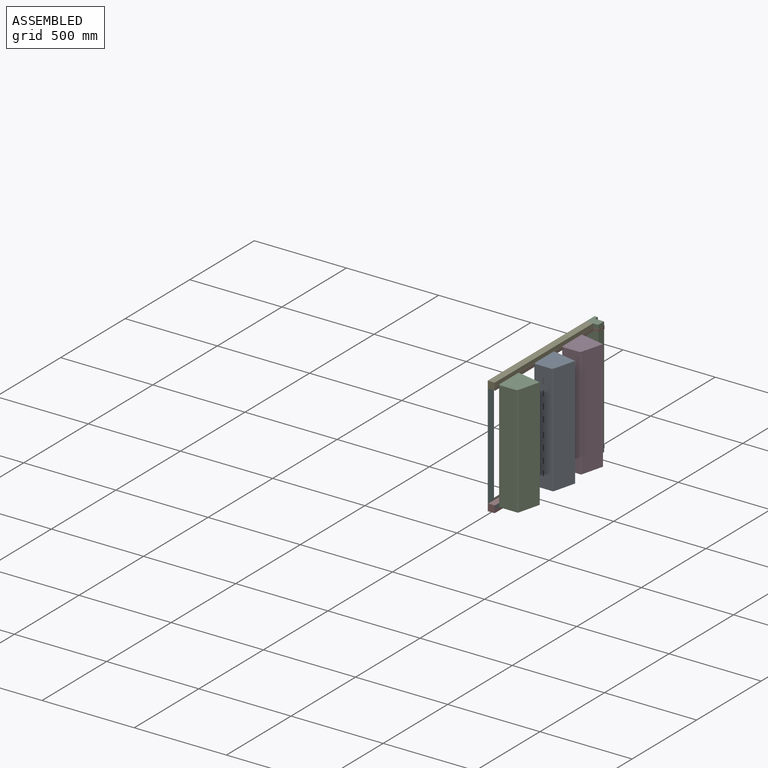
[diagram: assembled view]
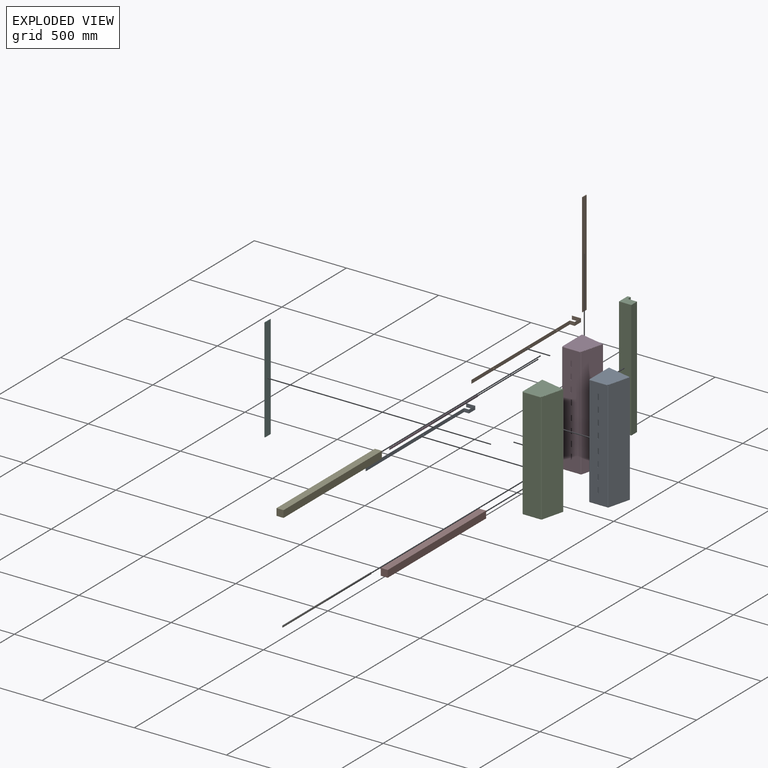
[diagram: exploded view]
GUIDED TOUR — MATED ASSEMBLY WITH SUBASSEMBLIES (Onshape document e24dba57bcac1407175b9171, AutoMate assembly e24dba57bcac1407175b9171_94eac4f6c8a923de0c3e7c80_e54bdbfbce681749a1011033_default)

This assembly has 24 component occurrences arranged in 12 top-level units: 10 individual components plus 2 subassemblies (S0, S1). The tour has two levels: first the top level, where each subassembly is treated as one rigid unit; then each subassembly is toured internally in its own section (nesting deeper than one subassembly level is flattened into its subassembly's section).

Components are labeled P0..P23 across the whole record; subassembly units are labeled S0..S1. A mate is a constraint between two units; its type names the relative motion it leaves free:
  FASTENED — locks the two components together rigidly (no relative motion),
  PLANAR — leaves sliding in the plane through the listed point (normal = the listed direction) and rotation about that normal free,
  SLIDER — leaves translation along the listed axis free.
Axis/direction vectors are unit vectors and 'through' points are millimeter coordinates, both in the assembly's world frame.

TOP-LEVEL MATES (between units; each subassembly's internal mates are listed in its own section)
  1. PLANAR "Planar 2": P10 <-> P3, direction (0.000, 1.000, 0.000) through (19.05, 0.00, -19.05) mm
  2. PLANAR "Planar 9": S0 <-> P3, direction (0.000, -1.000, 0.000) through (42.55, 45.72, -611.19) mm
  3. PLANAR "Planar 3": P3 <-> P10, direction (1.000, 0.000, 0.000) through (66.68, 22.22, 0.00) mm
  4. SLIDER "Slider 2": P15 <-> S1, axis (1.000, 0.000, 0.000) through (41.53, -319.53, -28.57) mm
  5. SLIDER "Slider 3": P19 <-> S0, axis (1.000, 0.000, 0.000) through (41.53, -593.34, -611.19) mm
  6. PLANAR "Planar 11": P15 <-> S0, direction (-1.000, 0.000, 0.000) through (40.77, -382.23, -319.89) mm
  7. PLANAR "Planar 5": S1 <-> P3, direction (0.000, -1.000, 0.000) through (42.54, 45.72, -28.57) mm
  8. FASTENED "Fastened 2": P14 <-> P3, direction (0.000, 1.000, 0.000) through (0.00, 0.00, -639.76) mm
  9. PLANAR "Planar 7": S0 <-> P14, direction (0.000, 0.000, 1.000) through (40.77, -2.03, -601.66) mm
  10. PLANAR "Planar 12": P19 <-> S1, direction (-1.000, 0.000, 0.000) through (40.77, -656.04, -319.87) mm
  11. FASTENED "Fastened 3": P10 <-> P11, direction (0.000, 0.000, -1.000) through (0.00, -762.00, -38.10) mm
  12. PLANAR "Planar 1": P10 <-> P3, direction (0.000, 0.000, 1.000) through (19.05, 0.00, 0.00) mm
  13. FASTENED "Fastened 5": P13 <-> P16, direction (0.000, 1.000, 0.000) through (0.00, -31.75, -601.66) mm
  14. PLANAR "Planar 6": S1 <-> P3, direction (-1.000, 0.000, 0.000) through (66.68, 22.22, -28.57) mm
  15. FASTENED "Fastened 4": P16 <-> P10, direction (0.000, 0.000, 1.000) through (0.00, 0.00, -38.10) mm
  16. PLANAR "Planar 4": S1 <-> P10, direction (0.000, 0.000, -1.000) through (40.00, -1.27, -38.10) mm
  17. PLANAR "Planar 10": P21 <-> S0, direction (-1.000, 0.000, 0.000) through (40.77, -166.11, -619.94) mm
  18. FASTENED "Fastened 6": P8 <-> P16, direction (0.000, 1.000, 0.000) through (0.00, -31.75, -38.10) mm
  19. SLIDER "Slider 1": S1 <-> P21, axis (1.000, 0.000, 0.000) through (43.18, -103.63, -28.57) mm
  20. PLANAR "Planar 8": S0 <-> P3, direction (-1.000, 0.000, 0.000) through (66.68, 22.22, -611.19) mm

TOP-LEVEL ASSEMBLY ORDER
  1. P21 — the base component [order verified]
  2. P15 [order verified]
  3. P19 [order verified]
  4. S0 [order verified]
  5. P14 [order verified]
  6. P16 [order verified]
  7. P3 [order verified]
  8. S1 [order verified]
  9. P8 [order verified]
  10. P13 [order verified]
  11. P10 [order verified]
  12. P11 [order verified]
Order-tag legend:
  [order verified] — this step's position reverses a verified removal order: the component was checked to insert without passing through the ones already placed.

Of the 24 component occurrences, 9 carry the full construction recipe — the FeatureScript program that regenerates the part's solid from scratch; the rest are supplied as boundary geometry only. Each toured unit is shown spotlighted twice — assembled, then exploded with a leader line back to its socket (green = recipe-attached component, orange = geometry-only, blue = subassembly unit; the rest desaturated gray).
NOTE — this tour is split across 2 documents so each fits a 32k-token context. This is document 1: the component sections continue in the remaining 1 document, each repeating the header above.
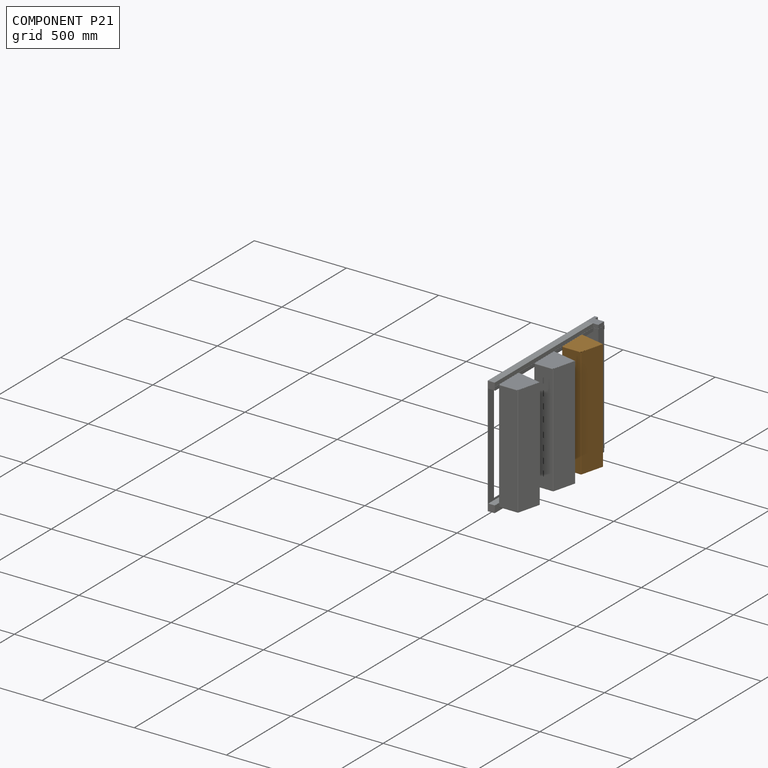
[diagram: component P21 — assembled]
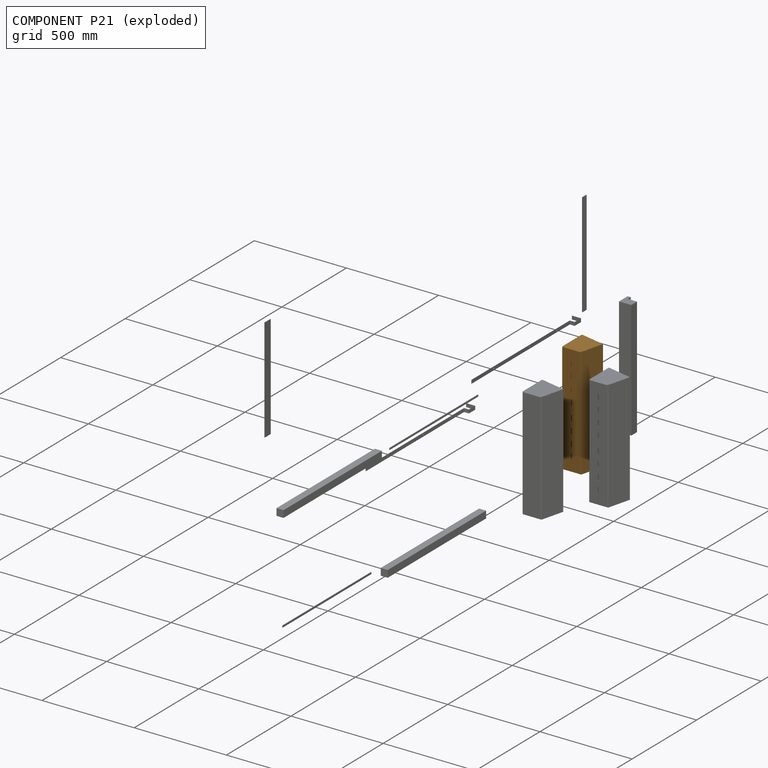
[diagram: component P21 — exploded]
COMPONENT P21 — geometry summary (no construction recipe available for this part):
  bounding box: 601.7 x 153.4 x 134.9 mm
  B-rep topology: 1 solid, 88 faces, 452 edges
  volume: 197395 mm^3 (2% of its bounding box)
  symmetry: mirror-symmetric across its x mid-plane
Held by: PLANAR mate "Planar 10" to P0; SLIDER mate "Slider 1" to P1.
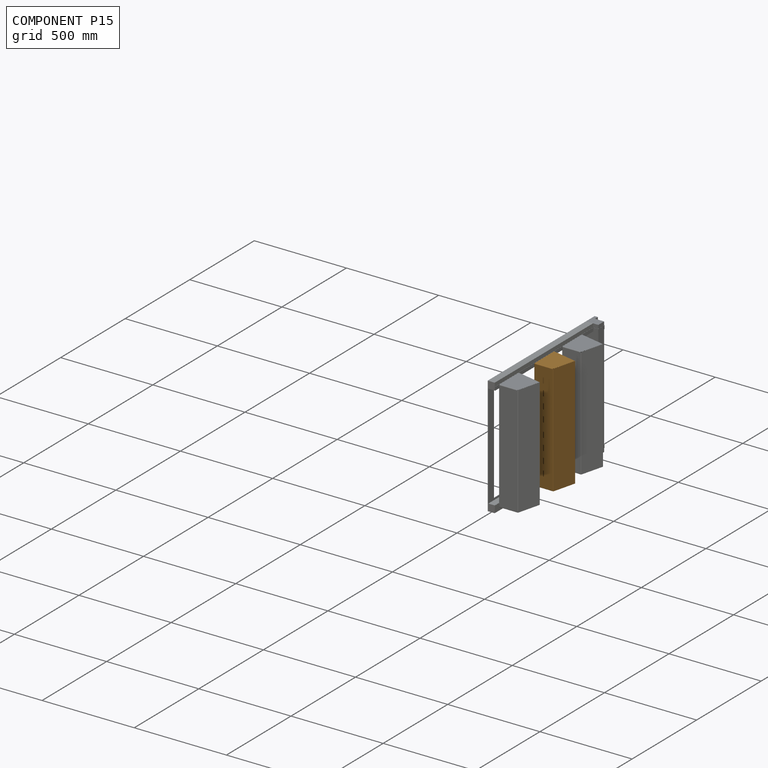
[diagram: component P15 — assembled]
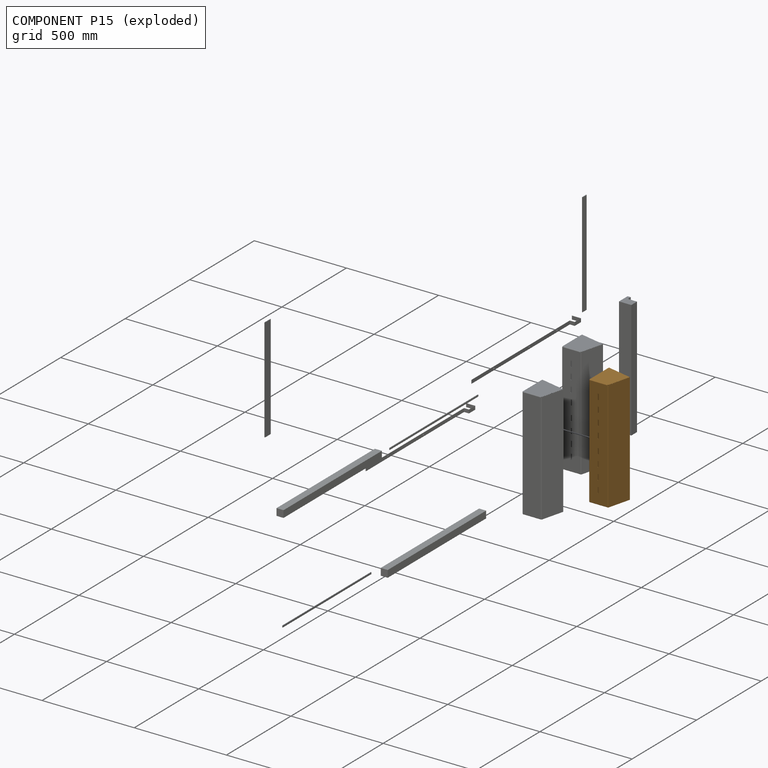
[diagram: component P15 — exploded]
COMPONENT P15 — geometry summary (no construction recipe available for this part):
  bounding box: 601.7 x 153.4 x 134.9 mm
  B-rep topology: 1 solid, 88 faces, 452 edges
  volume: 197395 mm^3 (2% of its bounding box)
  symmetry: mirror-symmetric across its x mid-plane
Held by: SLIDER mate "Slider 2" to P1; PLANAR mate "Planar 11" to P0.
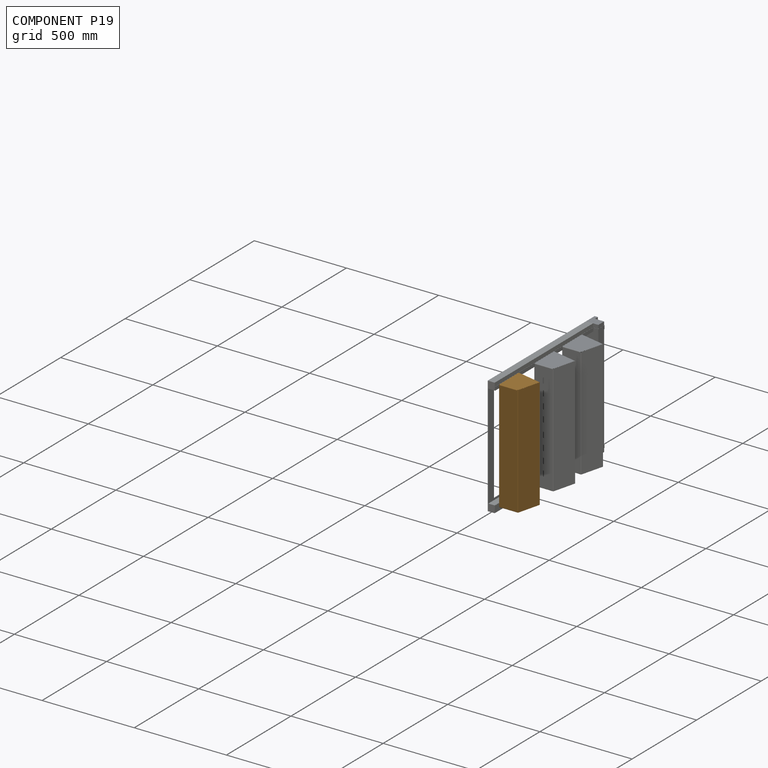
[diagram: component P19 — assembled]
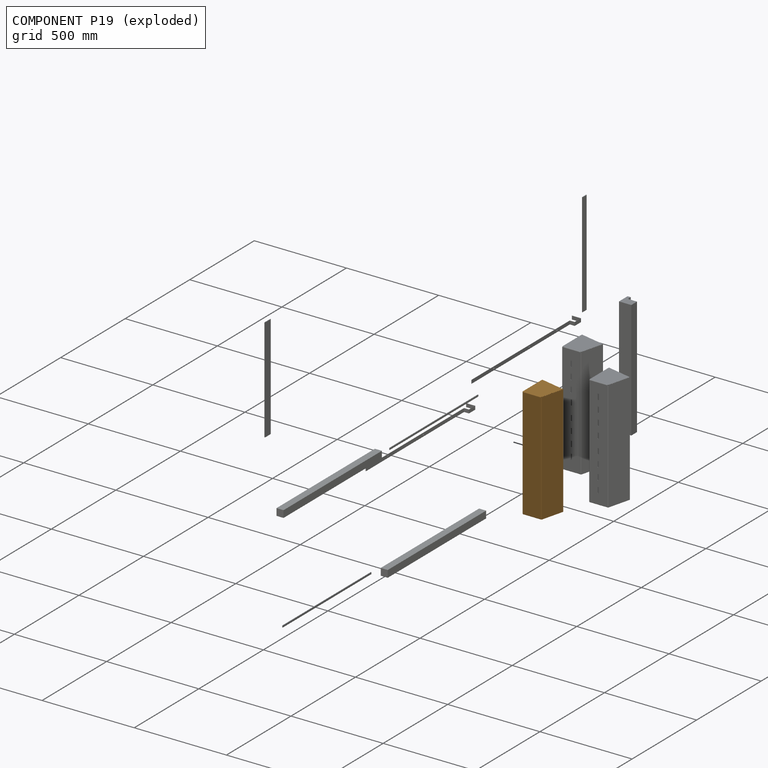
[diagram: component P19 — exploded]
COMPONENT P19 — geometry summary (no construction recipe available for this part):
  bounding box: 601.7 x 153.4 x 134.9 mm
  B-rep topology: 1 solid, 56 faces, 260 edges
  volume: 198568 mm^3 (2% of its bounding box)
  symmetry: mirror-symmetric across its x mid-plane
Held by: SLIDER mate "Slider 3" to P0; PLANAR mate "Planar 12" to P1.
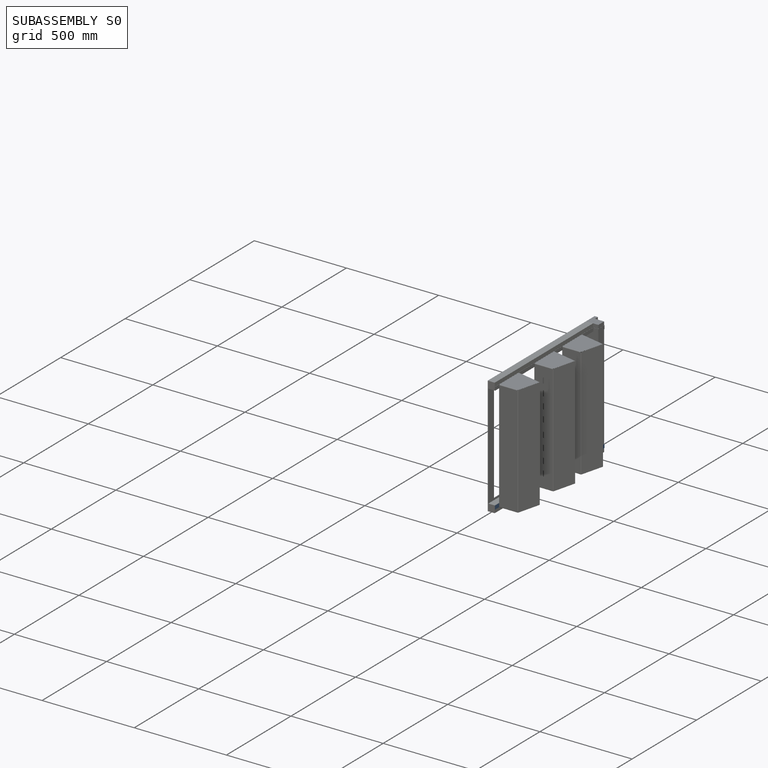
[diagram: subassembly S0 — assembled]
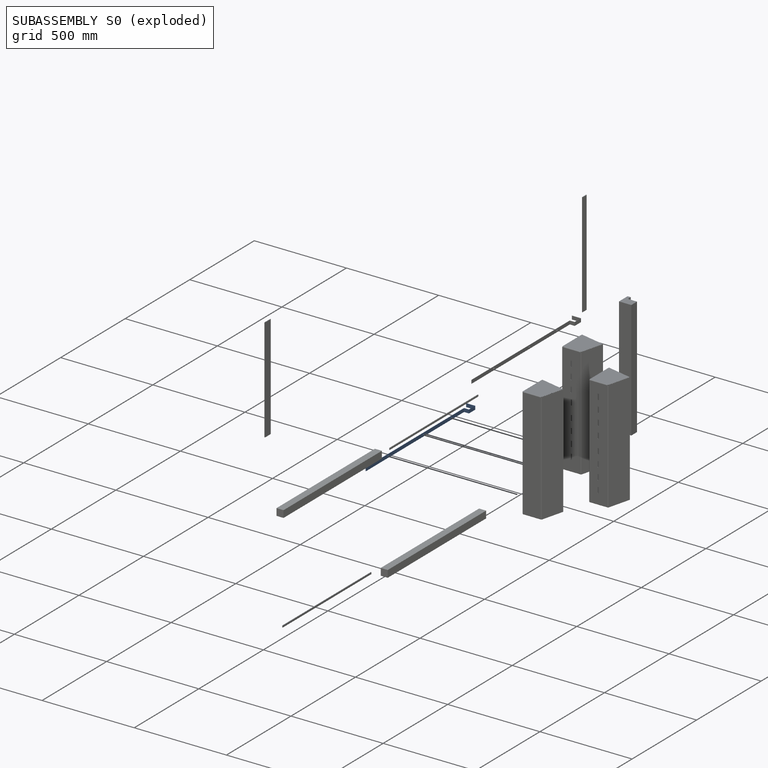
[diagram: subassembly S0 — exploded]
SUBASSEMBLY S0 — 7 components (P0, P2, P4, P12, P20, P22, P23), of which 1 recipe-attached; toured below.
Held by: PLANAR mate "Planar 9" to P3; SLIDER mate "Slider 3" to P19; PLANAR mate "Planar 11" to P15; PLANAR mate "Planar 7" to P14; PLANAR mate "Planar 10" to P21; PLANAR mate "Planar 8" to P3.
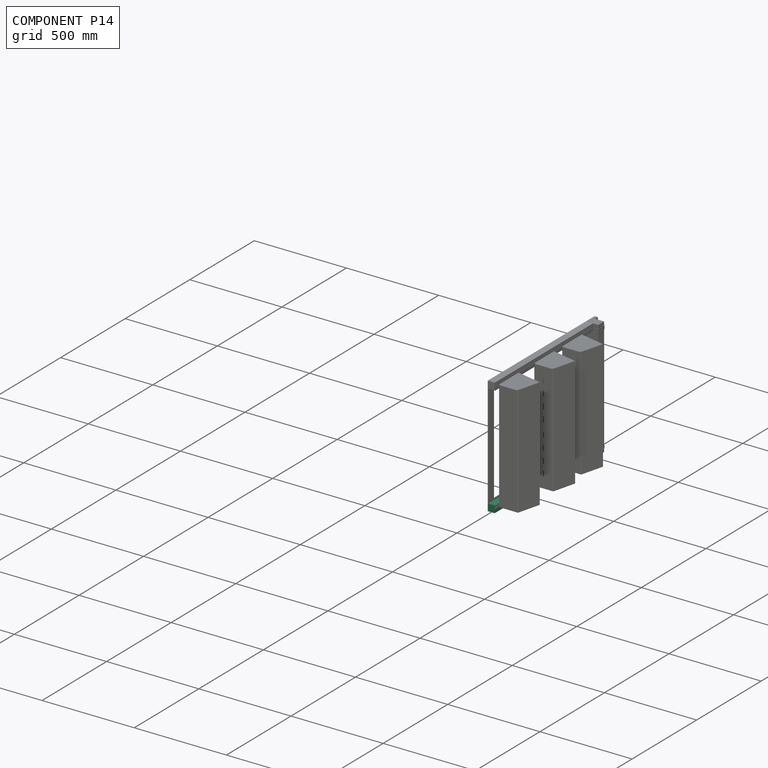
[diagram: component P14 — assembled]
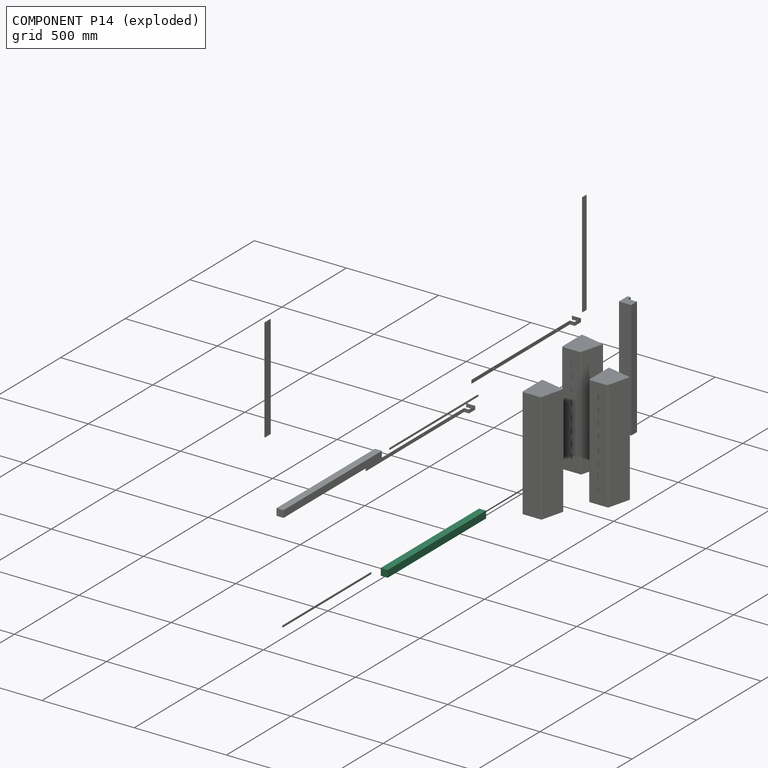
[diagram: component P14 — exploded]
COMPONENT P14 — same part as P10 (CADFS 00835867); its construction recipe is shown at P10.
Held by: FASTENED mate "Fastened 2" to P3; PLANAR mate "Planar 7" to P0.
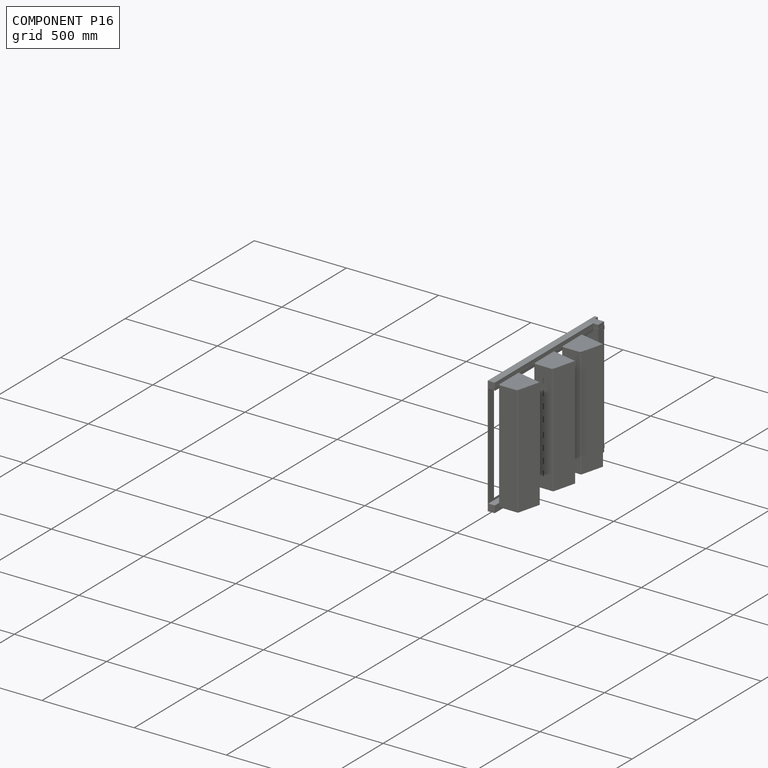
[diagram: component P16 — assembled]
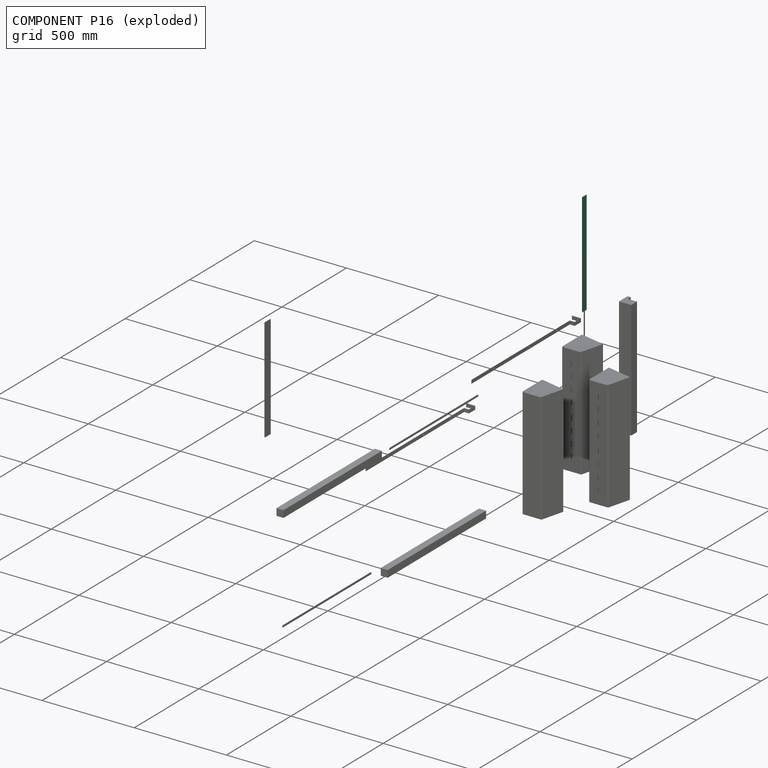
[diagram: component P16 — exploded]
COMPONENT P16 — recipe-attached (CADFS 00835871, mesh-verified: the recipe's output STEP matches this component's geometry to below the mesh-comparison resolution (tessellation chordal tolerance ~0.847 mm)).
Held by: FASTENED mate "Fastened 5" to P13; FASTENED mate "Fastened 4" to P10; FASTENED mate "Fastened 6" to P8.
Construction recipe (FeatureScript — the CAD program that rebuilds this solid; sketch coordinates are in the units given by the * unit suffixes, e.g. mm):

FeatureScript 1511;
import(path : "onshape/std/geometry.fs", version : "1511.0");
import(path : "onshape/std/common.fs", version : "1511.0");
const mm = millimeter;
const VERTEX = EntityType.VERTEX;
const EDGE = EntityType.EDGE;
const FACE = EntityType.FACE;
const BODY = EntityType.BODY;
function v(x, y){return vector(x, y);}
function OD(order){return orderDisambiguation(order);}
function OSD(set){return originalSetDisambiguation(set);}
function TD(topology){return topologyDisambiguation(topology);}
function TDD(query){return trueDependencyDisambiguation(query);}
function sQuery(a, b, c) {return sketchEntityQuery(a, b, c);}

annotation { "Feature Type Name" : "Feature", "Feature Type Description" : "" }
export const myFeature = defineFeature(function(context is Context, id is Id, definition is map)
    precondition{}
    {
        {
            var Q0;
            Q0=qCreatedBy(makeId("Right.planeOp"),FACE);
            var sketch = newSketch(context, id + "F0", { "sketchPlane" : qUnion([Q0])});
            skLineSegment(sketch, "E0.bottom", {"start": v(0, 0) * mm, "end": v(3.18, 0) * mm});
            skLineSegment(sketch, "E0.top", {"start": v(0, 31.75) * mm, "end": v(3.17, 31.75) * mm});
            skLineSegment(sketch, "E0.left", {"start": v(0, 0) * mm, "end": v(0, 31.75) * mm});
            skLineSegment(sketch, "E0.right", {"start": v(3.18, 0) * mm, "end": v(3.17, 31.75) * mm});
            skSolve(sketch);
        }
        {
            var Q0;
            Q0=qSketchRegion(id+"F0",true);
            extrude(context, id + "F1", {"entities" : qUnion([Q0]), "depth" : 563.56 * mm, "offsetDistance" : 25.4 * mm});
        }
    });
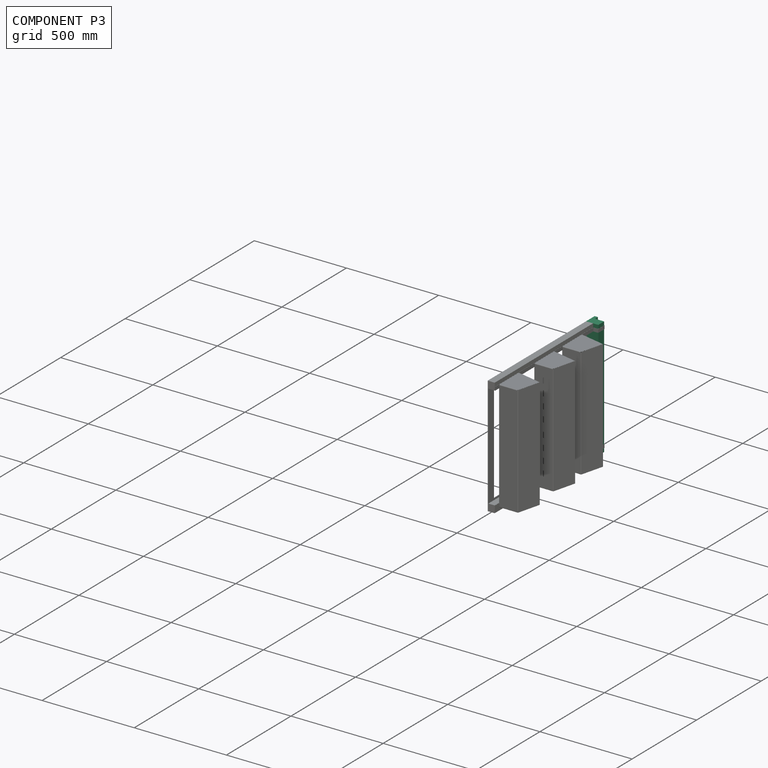
[diagram: component P3 — assembled]
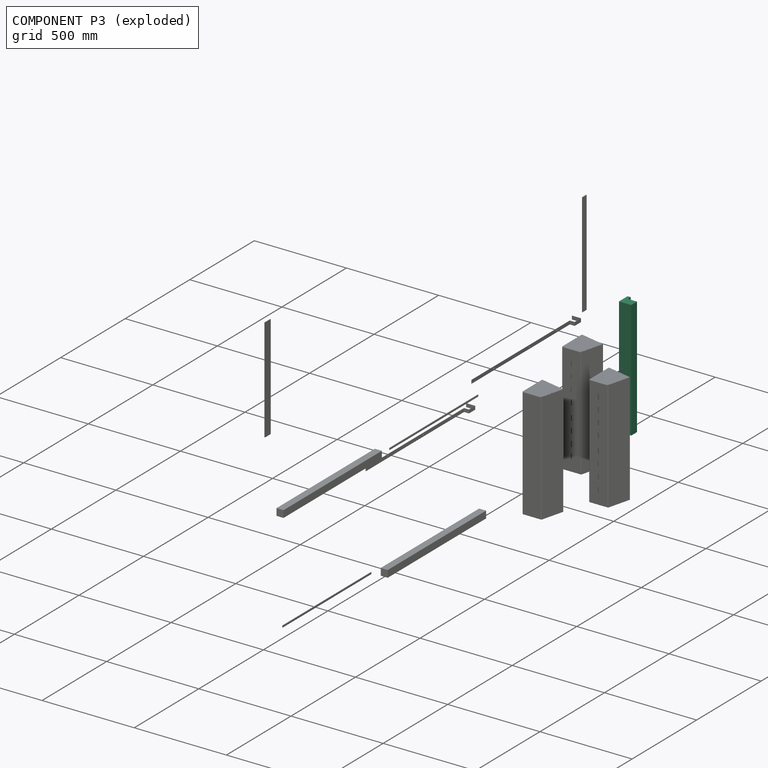
[diagram: component P3 — exploded]
COMPONENT P3 — recipe-attached (CADFS 00835857, mesh-verified: the recipe's output STEP matches this component's geometry to below the mesh-comparison resolution (tessellation chordal tolerance ~0.97 mm)).
Held by: PLANAR mate "Planar 2" to P10; PLANAR mate "Planar 9" to P0; PLANAR mate "Planar 3" to P10; PLANAR mate "Planar 5" to P1; FASTENED mate "Fastened 2" to P14; PLANAR mate "Planar 1" to P10; PLANAR mate "Planar 6" to P1; PLANAR mate "Planar 8" to P0.
Construction recipe (FeatureScript — the CAD program that rebuilds this solid; sketch coordinates are in the units given by the * unit suffixes, e.g. mm):

FeatureScript 1511;
import(path : "onshape/std/geometry.fs", version : "1511.0");
import(path : "onshape/std/common.fs", version : "1511.0");
const mm = millimeter;
const VERTEX = EntityType.VERTEX;
const EDGE = EntityType.EDGE;
const FACE = EntityType.FACE;
const BODY = EntityType.BODY;
function v(x, y){return vector(x, y);}
function OD(order){return orderDisambiguation(order);}
function OSD(set){return originalSetDisambiguation(set);}
function TD(topology){return topologyDisambiguation(topology);}
function TDD(query){return trueDependencyDisambiguation(query);}
function sQuery(a, b, c) {return sketchEntityQuery(a, b, c);}

annotation { "Feature Type Name" : "Feature", "Feature Type Description" : "" }
export const myFeature = defineFeature(function(context is Context, id is Id, definition is map)
    precondition{}
    {
        {
            var Q0;
            Q0=qCreatedBy(makeId("Right.planeOp"),FACE);
            var sketch = newSketch(context, id + "F0", { "sketchPlane" : qUnion([Q0])});
            skLineSegment(sketch, "E0", {"start": v(0, 23.03) * mm, "end": v(17.46, 23.03) * mm});
            skLineSegment(sketch, "E1", {"start": v(17.46, 23.03) * mm, "end": v(17.46, 1.18) * mm});
            skLineSegment(sketch, "E2", {"start": v(17.46, 1.18) * mm, "end": v(66.68, 1.18) * mm});
            skLineSegment(sketch, "E3", {"start": v(66.68, 1.18) * mm, "end": v(66.68, -43.27) * mm});
            skLineSegment(sketch, "E4", {"start": v(66.68, -43.27) * mm, "end": v(0, -43.27) * mm});
            skLineSegment(sketch, "E5", {"start": v(0, -43.27) * mm, "end": v(0, 23.03) * mm});
            skSolve(sketch);
        }
        {
            var Q0;
            Q0=makeQuery(id+"F0.imprint","IMPRINT",FACE,{"disambiguationData":[TD([[makeQuery(id+"F0.imprint","IMPRINT",EDGE,{"derivedFrom":sQuery(id+"F0.wireOp",EDGE,"E0")}),-1.0]])]});
            extrude(context, id + "F1", {"entities" : qUnion([Q0]), "depth" : 639.76 * mm, "offsetDistance" : 25.4 * mm});
        }
    });
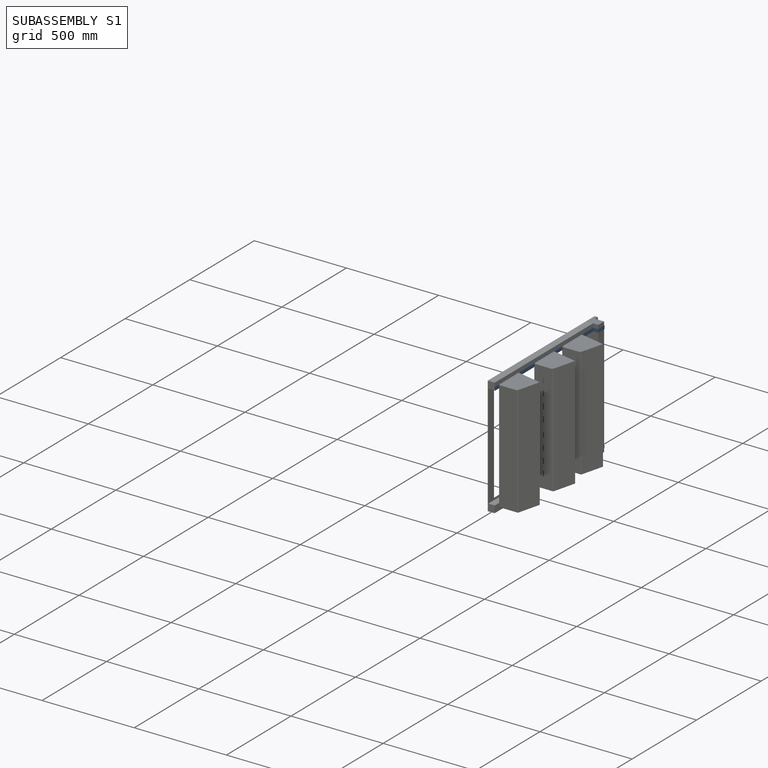
[diagram: subassembly S1 — assembled]
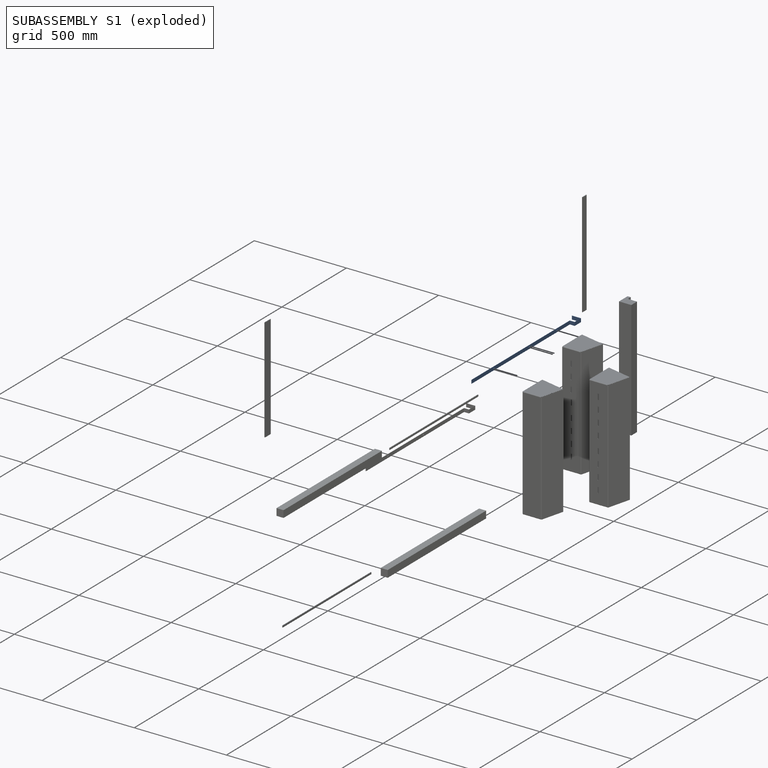
[diagram: subassembly S1 — exploded]
SUBASSEMBLY S1 — 7 components (P1, P5, P6, P7, P9, P17, P18), of which 1 recipe-attached; toured below.
Held by: SLIDER mate "Slider 2" to P15; PLANAR mate "Planar 5" to P3; PLANAR mate "Planar 12" to P19; PLANAR mate "Planar 6" to P3; PLANAR mate "Planar 4" to P10; SLIDER mate "Slider 1" to P21.
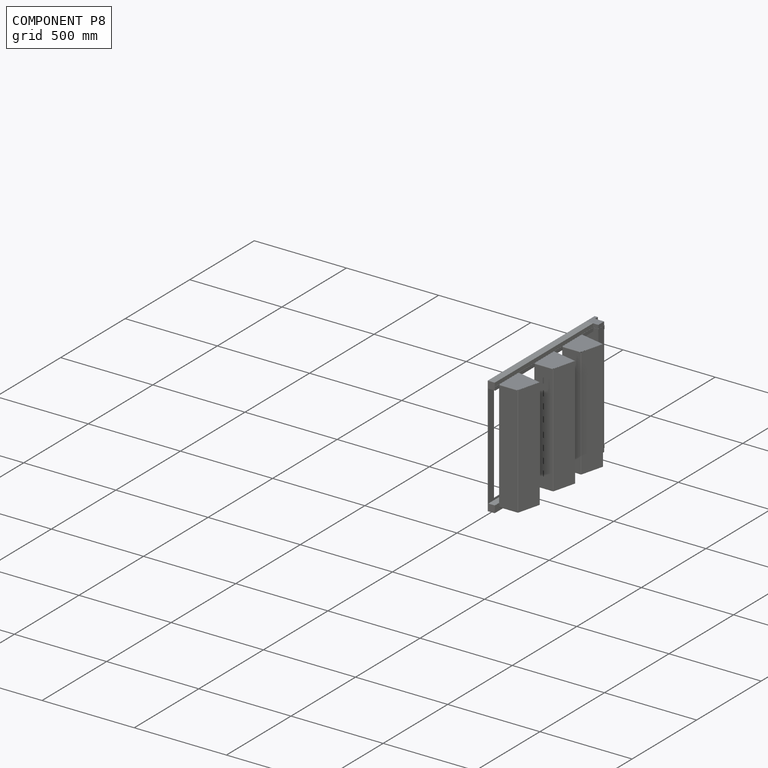
[diagram: component P8 — assembled]
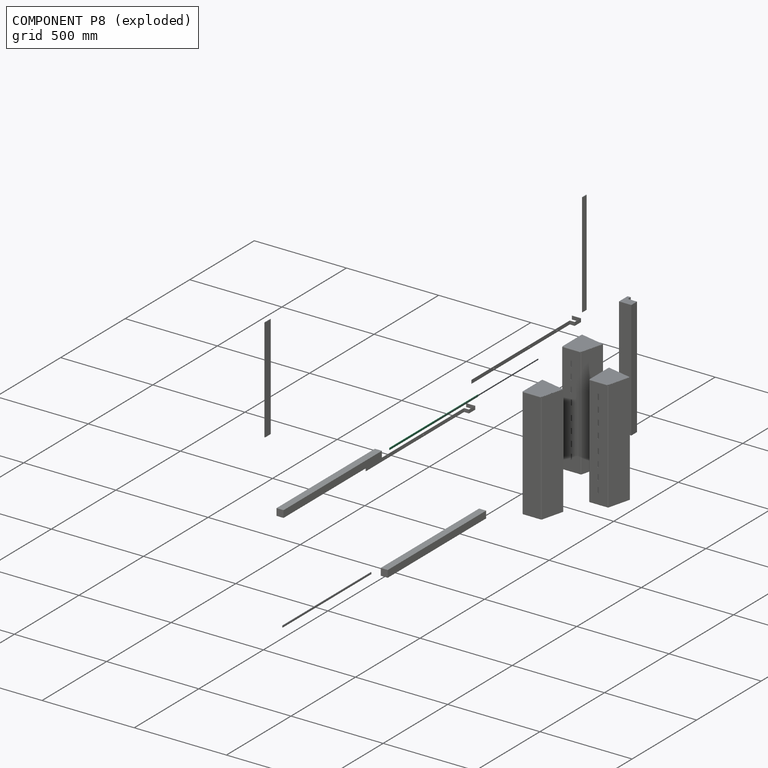
[diagram: component P8 — exploded]
COMPONENT P8 — recipe-attached (CADFS 00835873, mesh-verified: the recipe's output STEP matches this component's geometry to below the mesh-comparison resolution (tessellation chordal tolerance ~1.03 mm)).
Held by: FASTENED mate "Fastened 6" to P16.
Construction recipe (FeatureScript — the CAD program that rebuilds this solid; sketch coordinates are in the units given by the * unit suffixes, e.g. mm):

FeatureScript 1511;
import(path : "onshape/std/geometry.fs", version : "1511.0");
import(path : "onshape/std/common.fs", version : "1511.0");
const mm = millimeter;
const VERTEX = EntityType.VERTEX;
const EDGE = EntityType.EDGE;
const FACE = EntityType.FACE;
const BODY = EntityType.BODY;
function v(x, y){return vector(x, y);}
function OD(order){return orderDisambiguation(order);}
function OSD(set){return originalSetDisambiguation(set);}
function TD(topology){return topologyDisambiguation(topology);}
function TDD(query){return trueDependencyDisambiguation(query);}
function sQuery(a, b, c) {return sketchEntityQuery(a, b, c);}

annotation { "Feature Type Name" : "Feature", "Feature Type Description" : "" }
export const myFeature = defineFeature(function(context is Context, id is Id, definition is map)
    precondition{}
    {
        {
            var Q0;
            Q0=qCreatedBy(makeId("Right.planeOp"),FACE);
            var sketch = newSketch(context, id + "F0", { "sketchPlane" : qUnion([Q0])});
            skLineSegment(sketch, "E0.bottom", {"start": v(0, 0) * mm, "end": v(3.18, 0) * mm});
            skLineSegment(sketch, "E0.top", {"start": v(0, 9.52) * mm, "end": v(3.18, 9.52) * mm});
            skLineSegment(sketch, "E0.left", {"start": v(0, 0) * mm, "end": v(0, 9.52) * mm});
            skLineSegment(sketch, "E0.right", {"start": v(3.18, 0) * mm, "end": v(3.18, 9.52) * mm});
            skSolve(sketch);
        }
        {
            var Q0;
            Q0=qSketchRegion(id+"F0",true);
            extrude(context, id + "F1", {"entities" : qUnion([Q0]), "depth" : 685.8 * mm, "offsetDistance" : 25.4 * mm});
        }
    });
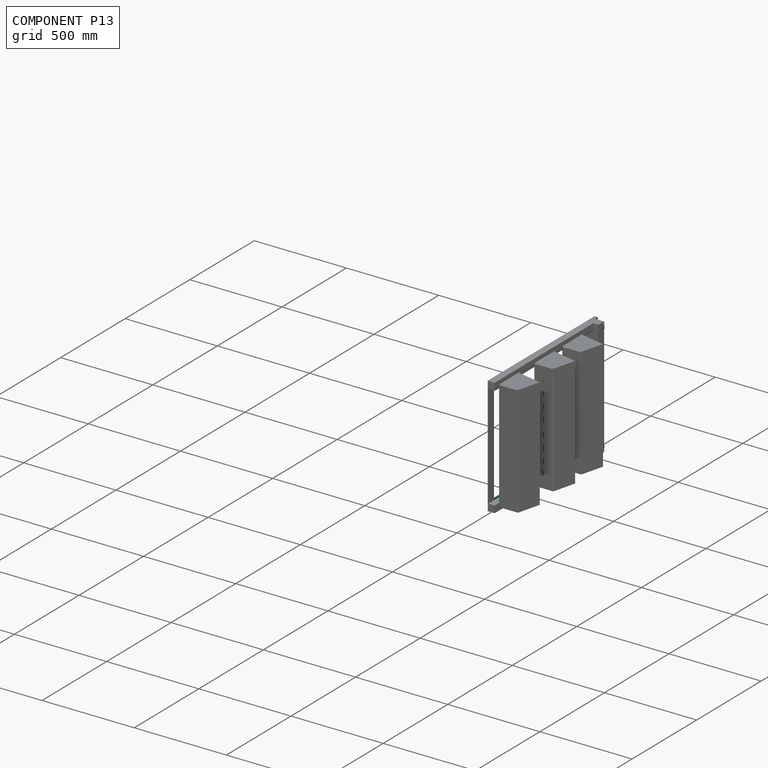
[diagram: component P13 — assembled]
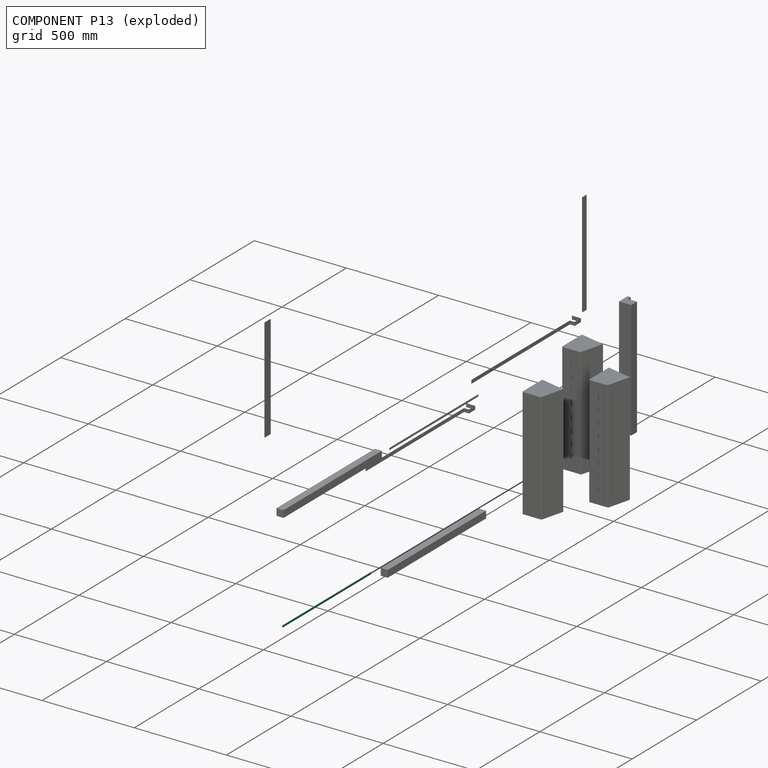
[diagram: component P13 — exploded]
COMPONENT P13 — same part as P8 (CADFS 00835873); its construction recipe is shown at P8.
Held by: FASTENED mate "Fastened 5" to P16.
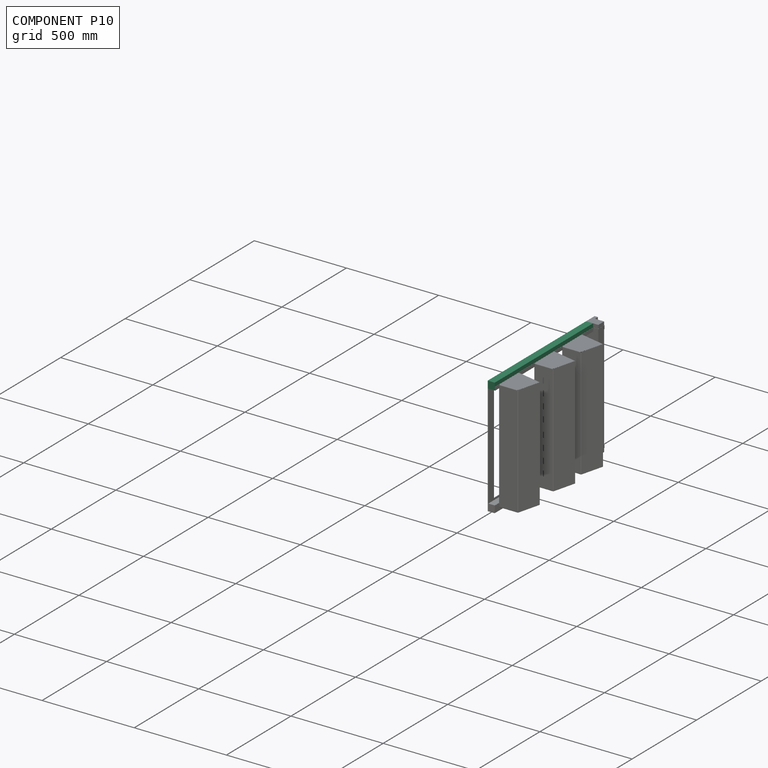
[diagram: component P10 — assembled]
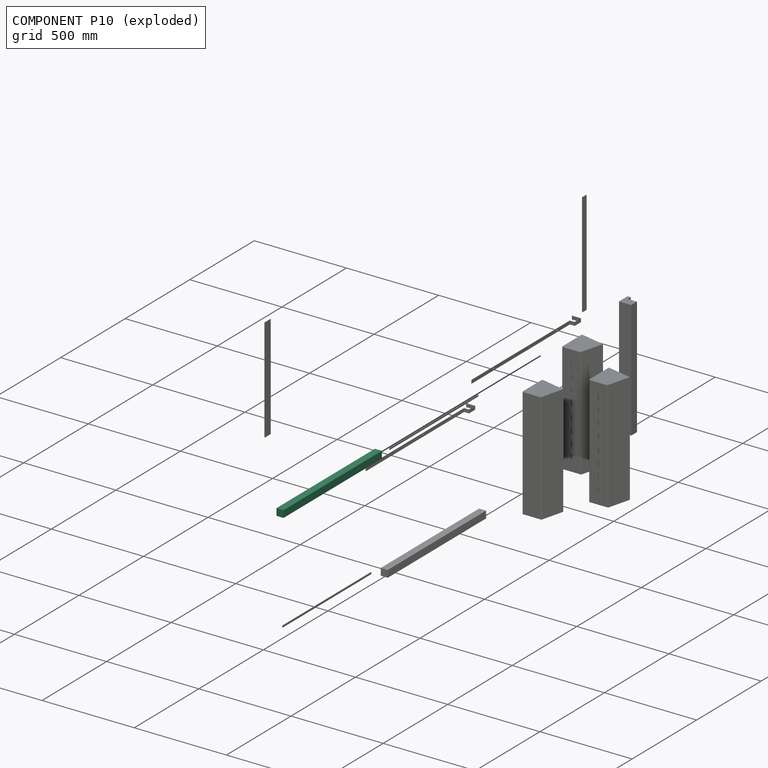
[diagram: component P10 — exploded]
COMPONENT P10 — recipe-attached (CADFS 00835867, mesh-verified: the recipe's output STEP matches this component's geometry to below the mesh-comparison resolution (tessellation chordal tolerance ~1.15 mm)).
Held by: PLANAR mate "Planar 2" to P3; PLANAR mate "Planar 3" to P3; FASTENED mate "Fastened 3" to P11; PLANAR mate "Planar 1" to P3; FASTENED mate "Fastened 4" to P16; PLANAR mate "Planar 4" to P1.
Construction recipe (FeatureScript — the CAD program that rebuilds this solid; sketch coordinates are in the units given by the * unit suffixes, e.g. mm):

FeatureScript 1511;
import(path : "onshape/std/geometry.fs", version : "1511.0");
import(path : "onshape/std/common.fs", version : "1511.0");
const mm = millimeter;
const VERTEX = EntityType.VERTEX;
const EDGE = EntityType.EDGE;
const FACE = EntityType.FACE;
const BODY = EntityType.BODY;
function v(x, y){return vector(x, y);}
function OD(order){return orderDisambiguation(order);}
function OSD(set){return originalSetDisambiguation(set);}
function TD(topology){return topologyDisambiguation(topology);}
function TDD(query){return trueDependencyDisambiguation(query);}
function sQuery(a, b, c) {return sketchEntityQuery(a, b, c);}

annotation { "Feature Type Name" : "Feature", "Feature Type Description" : "" }
export const myFeature = defineFeature(function(context is Context, id is Id, definition is map)
    precondition{}
    {
        {
            var Q0;
            Q0=qCreatedBy(makeId("Top.planeOp"),FACE);
            var sketch = newSketch(context, id + "F0", { "sketchPlane" : qUnion([Q0])});
            skLineSegment(sketch, "E0.bottom", {"start": v(0, 0) * mm, "end": v(38.1, 0) * mm});
            skLineSegment(sketch, "E0.top", {"start": v(0, 38.1) * mm, "end": v(38.1, 38.1) * mm});
            skLineSegment(sketch, "E0.left", {"start": v(0, 0) * mm, "end": v(0, 38.1) * mm});
            skLineSegment(sketch, "E0.right", {"start": v(38.1, 0) * mm, "end": v(38.1, 38.1) * mm});
            skSolve(sketch);
        }
        {
            var Q0;
            Q0=makeQuery(id+"F0.imprint","IMPRINT",FACE,{"disambiguationData":[TD([[makeQuery(id+"F0.imprint","IMPRINT",EDGE,{"derivedFrom":sQuery(id+"F0.wireOp",EDGE,"E0.bottom")}),1.0]])]});
            extrude(context, id + "F1", {"entities" : qUnion([Q0]), "depth" : 762 * mm, "offsetDistance" : 25.4 * mm});
        }
    });
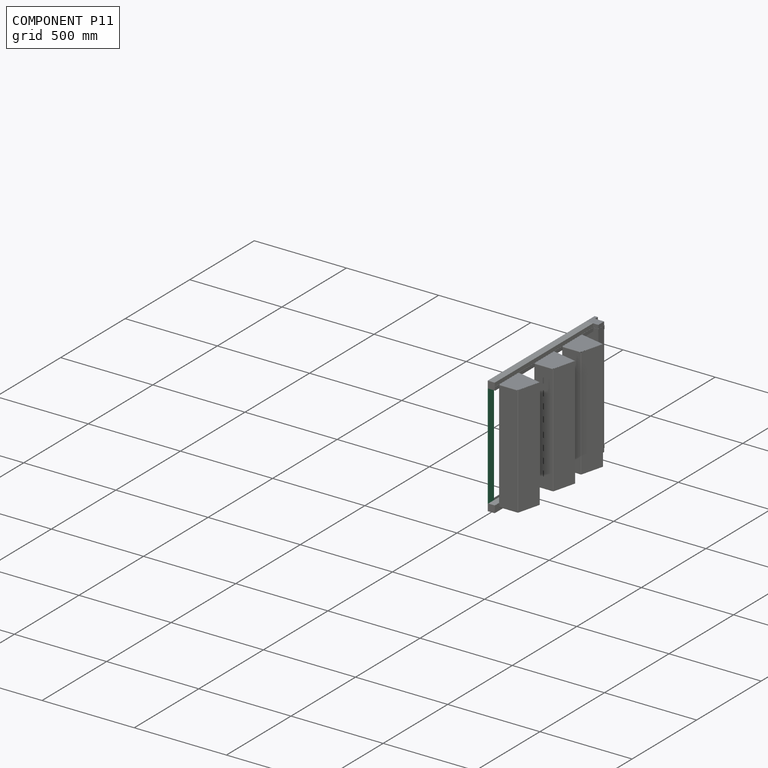
[diagram: component P11 — assembled]
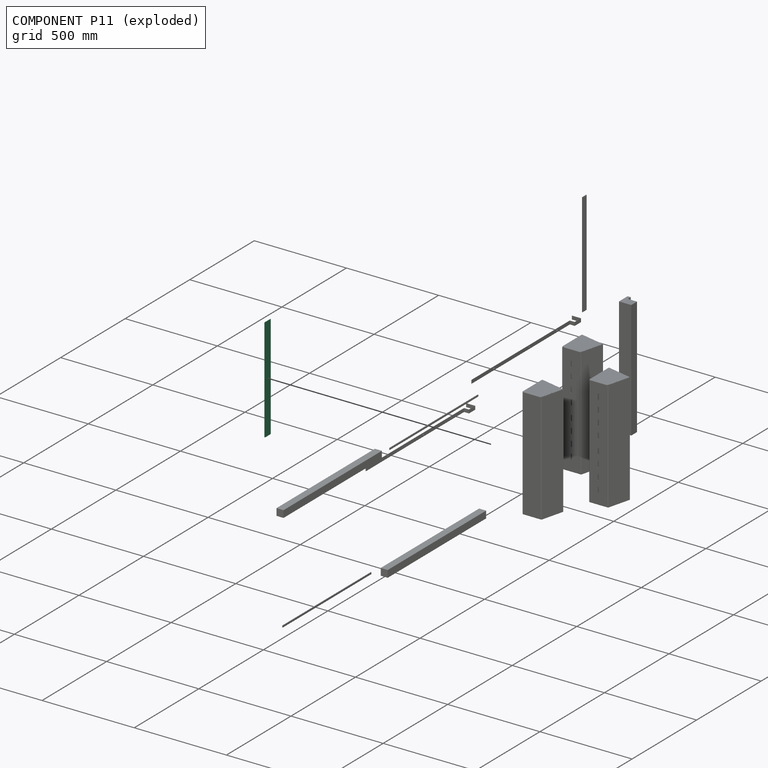
[diagram: component P11 — exploded]
COMPONENT P11 — recipe-attached (CADFS 00835869, mesh-verified: the recipe's output STEP matches this component's geometry to below the mesh-comparison resolution (tessellation chordal tolerance ~0.848 mm)).
Held by: FASTENED mate "Fastened 3" to P10.
Construction recipe (FeatureScript — the CAD program that rebuilds this solid; sketch coordinates are in the units given by the * unit suffixes, e.g. mm):

FeatureScript 1511;
import(path : "onshape/std/geometry.fs", version : "1511.0");
import(path : "onshape/std/common.fs", version : "1511.0");
const mm = millimeter;
const VERTEX = EntityType.VERTEX;
const EDGE = EntityType.EDGE;
const FACE = EntityType.FACE;
const BODY = EntityType.BODY;
function v(x, y){return vector(x, y);}
function OD(order){return orderDisambiguation(order);}
function OSD(set){return originalSetDisambiguation(set);}
function TD(topology){return topologyDisambiguation(topology);}
function TDD(query){return trueDependencyDisambiguation(query);}
function sQuery(a, b, c) {return sketchEntityQuery(a, b, c);}

annotation { "Feature Type Name" : "Feature", "Feature Type Description" : "" }
export const myFeature = defineFeature(function(context is Context, id is Id, definition is map)
    precondition{}
    {
        {
            var Q0;
            Q0=qCreatedBy(makeId("Right.planeOp"),FACE);
            var sketch = newSketch(context, id + "F0", { "sketchPlane" : qUnion([Q0])});
            skLineSegment(sketch, "E0.bottom", {"start": v(0, 0) * mm, "end": v(3.18, 0) * mm});
            skLineSegment(sketch, "E0.top", {"start": v(0, 44.45) * mm, "end": v(3.17, 44.45) * mm});
            skLineSegment(sketch, "E0.left", {"start": v(0, 0) * mm, "end": v(0, 44.45) * mm});
            skLineSegment(sketch, "E0.right", {"start": v(3.18, 0) * mm, "end": v(3.17, 44.45) * mm});
            skSolve(sketch);
        }
        {
            var Q0;
            Q0 = qSketchRegion(id + "F0", true);
            extrude(context, id + "F1", {"entities" : qUnion([Q0]), "depth" : 563.56 * mm, "offsetDistance" : 25.4 * mm});
        }
    });
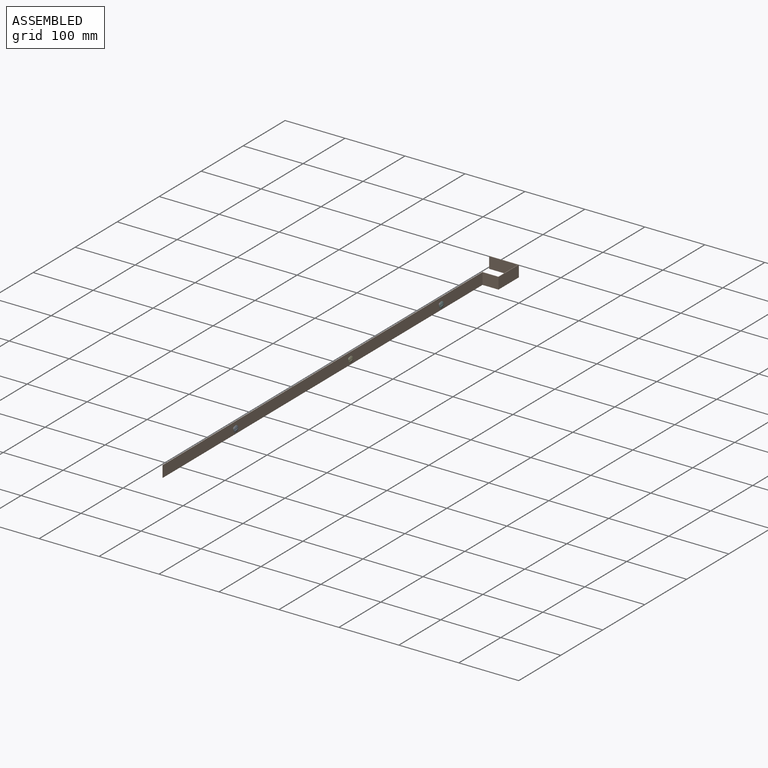
[diagram: subassembly S0 — assembled view]
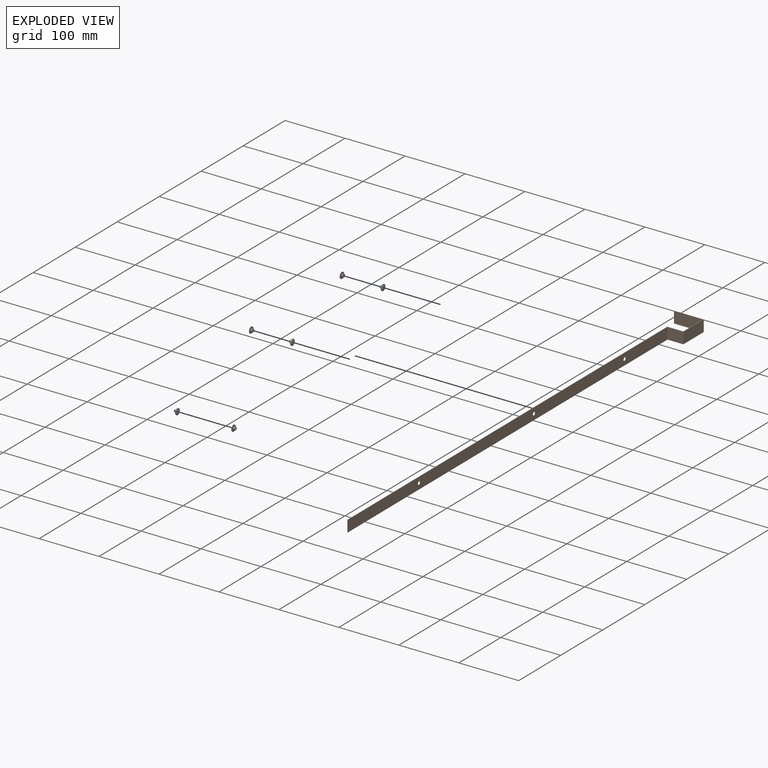
[diagram: subassembly S0 — exploded view]
SUBASSEMBLY S0 TOUR — 7 components, shown here in isolation at its own camera.

INTERNAL MATES
  1. PLANAR "Planar 1": P12 <-> P2, direction (1.000, 0.000, 0.000) through (40.01, -103.63, -611.19) mm
  2. PLANAR "Planar 2": P0 <-> P23, direction (-1.000, 0.000, 0.000) through (43.18, -593.34, -611.19) mm
  3. SLIDER "Slider 4": P4 <-> P2, axis (1.000, 0.000, 0.000) through (43.18, -319.53, -611.19) mm
  4. PLANAR "Planar 2": P22 <-> P12, direction (-1.000, 0.000, 0.000) through (43.18, -103.63, -611.19) mm
  5. SLIDER "Slider 2": P0 <-> P23, axis (-1.000, 0.000, 0.000) through (38.42, -593.34, -611.19) mm
  6. SLIDER "Slider 3": P23 <-> P2, axis (1.000, 0.000, 0.000) through (43.18, -593.34, -611.19) mm
  7. FASTENED "Fastened 3": P4 <-> P2, direction (1.000, 0.000, 0.000) through (40.01, -319.53, -611.19) mm
  8. SLIDER "Slider 2": P22 <-> P12, axis (-1.000, 0.000, 0.000) through (38.42, -103.63, -611.19) mm
  9. FASTENED "Fastened 2": P23 <-> P2, direction (1.000, 0.000, 0.000) through (40.01, -593.34, -611.19) mm
  10. SLIDER "Slider 2": P20 <-> P4, axis (-1.000, 0.000, 0.000) through (38.42, -319.53, -611.19) mm
  11. PLANAR "Planar 2": P20 <-> P4, direction (-1.000, 0.000, 0.000) through (43.18, -319.53, -611.19) mm
  12. SLIDER "Slider 1": P12 <-> P2, axis (1.000, 0.000, 0.000) through (43.18, -103.63, -611.19) mm
  13. PLANAR "Planar 2": P0 <-> P23, direction (-1.000, 0.000, 0.000) through (43.18, -593.34, -611.19) mm
  14. SLIDER "Slider 2": P0 <-> P23, axis (-1.000, 0.000, 0.000) through (38.42, -593.34, -611.19) mm
  15. SLIDER "Slider 2": P20 <-> P4, axis (-1.000, 0.000, 0.000) through (38.42, -319.53, -611.19) mm
  16. PLANAR "Planar 2": P22 <-> P12, direction (-1.000, 0.000, 0.000) through (43.18, -103.63, -611.19) mm
  17. PLANAR "Planar 2": P20 <-> P4, direction (-1.000, 0.000, 0.000) through (43.18, -319.53, -611.19) mm
  18. FASTENED "Fastened 3": P4 <-> P2, direction (1.000, 0.000, 0.000) through (40.01, -319.53, -611.19) mm
  19. SLIDER "Slider 2": P22 <-> P12, axis (-1.000, 0.000, 0.000) through (38.42, -103.63, -611.19) mm
  20. FASTENED "Fastened 2": P23 <-> P2, direction (1.000, 0.000, 0.000) through (40.01, -593.34, -611.19) mm
  21. SLIDER "Slider 1": P12 <-> P2, axis (1.000, 0.000, 0.000) through (43.18, -103.63, -611.19) mm
  22. SLIDER "Slider 4": P4 <-> P2, axis (1.000, 0.000, 0.000) through (43.18, -319.53, -611.19) mm
  23. SLIDER "Slider 3": P23 <-> P2, axis (1.000, 0.000, 0.000) through (43.18, -593.34, -611.19) mm
  24. PLANAR "Planar 1": P12 <-> P2, direction (1.000, 0.000, 0.000) through (40.01, -103.63, -611.19) mm

ASSEMBLY ORDER (within the subassembly)
  1. P23 — the base component [order verified]
  2. P0 [order verified]
  3. P22 [order verified]
  4. P12 [order verified]
  5. P20 [order verified]
  6. P2 [order verified]
  7. P4 [order verified]
(P0, P4, P12 verified with a relaxed clearance tolerance: the source model stores slight part interference there.)
Order-tag legend:
  [order verified] — this step's position reverses a verified removal order: the component was checked to insert without passing through the ones already placed.
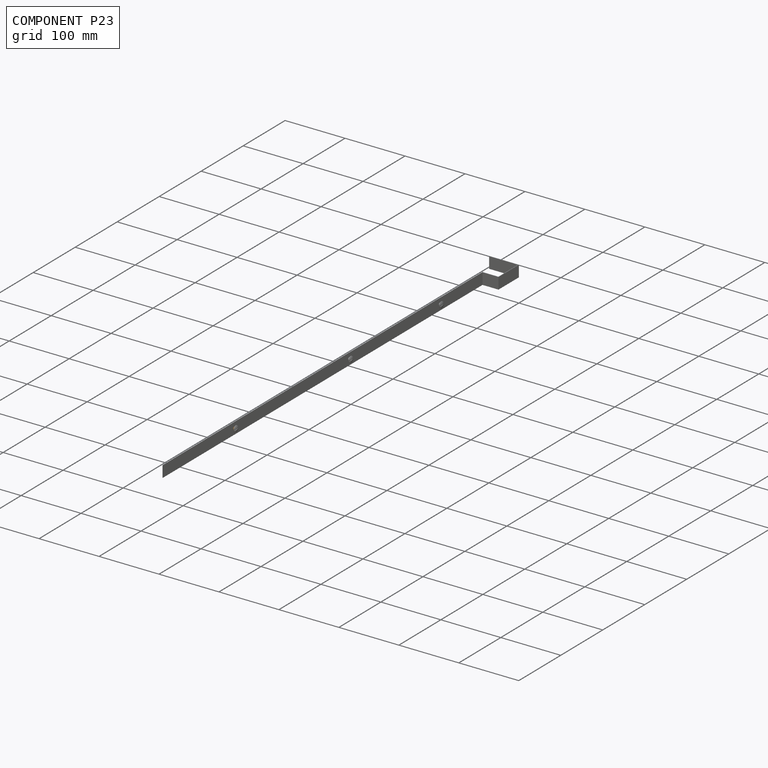
[diagram: component P23 — assembled]
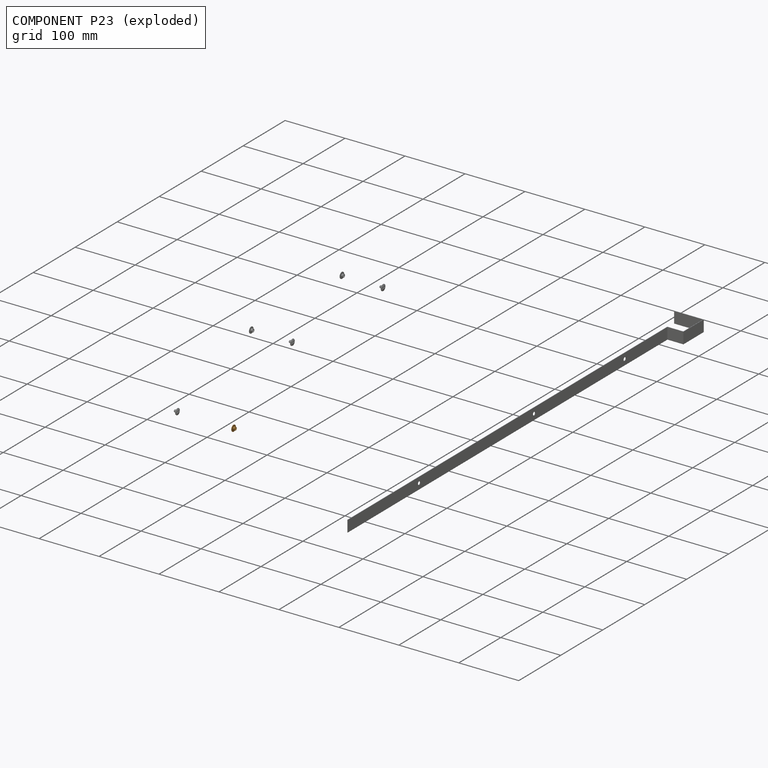
[diagram: component P23 — exploded]
COMPONENT P23 — geometry summary (no construction recipe available for this part):
  bounding box: 10.3 x 10.3 x 5.4 mm
  B-rep topology: 1 solid, 10 faces, 44 edges
  volume: 107 mm^3 (19% of its bounding box)
Held by: PLANAR mate "Planar 2" to P0; SLIDER mate "Slider 2" to P0; SLIDER mate "Slider 3" to P2; FASTENED mate "Fastened 2" to P2; PLANAR mate "Planar 2" to P0; SLIDER mate "Slider 2" to P0; FASTENED mate "Fastened 2" to P2; SLIDER mate "Slider 3" to P2.
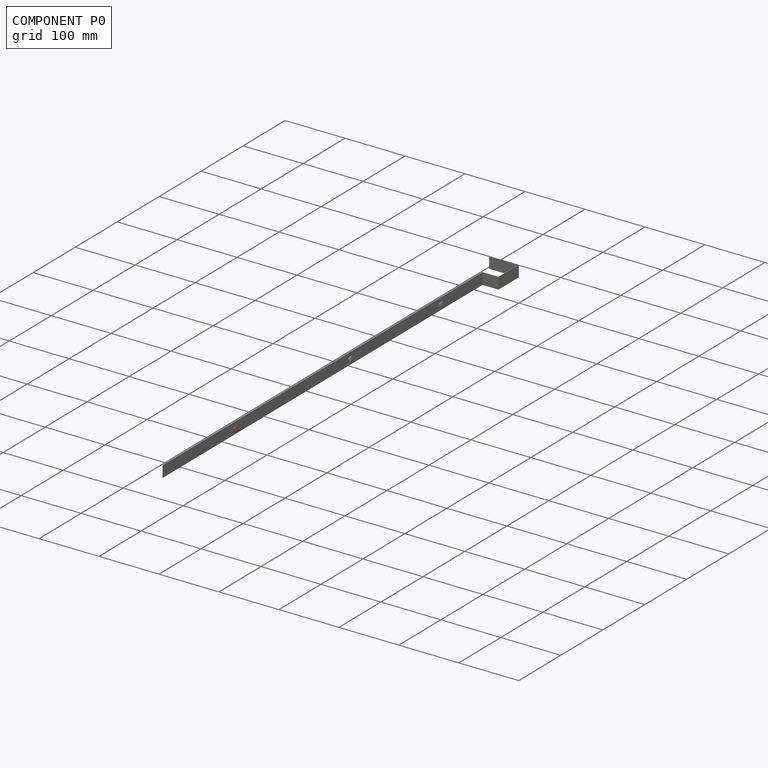
[diagram: component P0 — assembled]
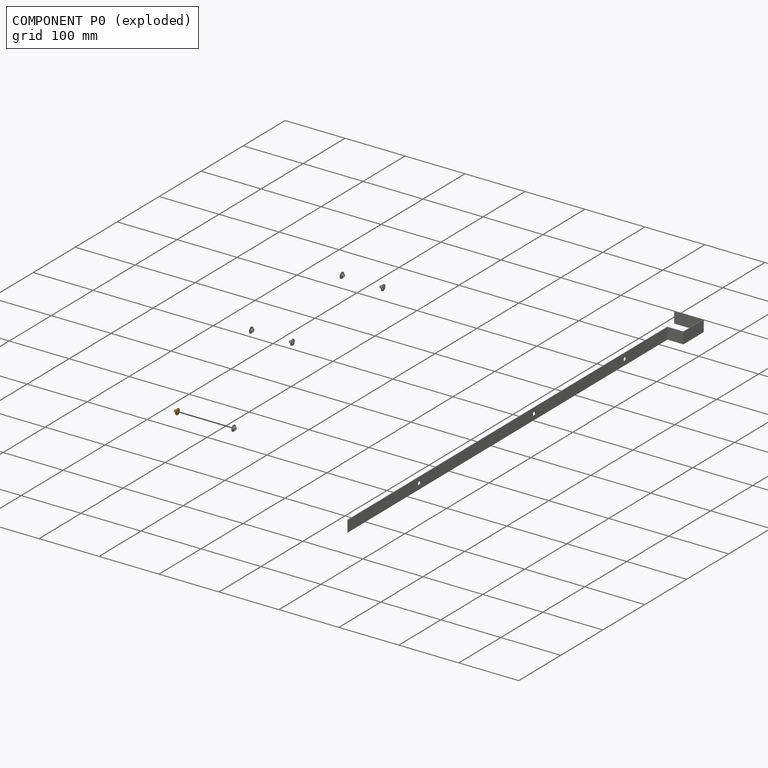
[diagram: component P0 — exploded]
COMPONENT P0 — geometry summary (no construction recipe available for this part):
  bounding box: 10.6 x 10.6 x 6.9 mm
  B-rep topology: 1 solid, 13 faces, 52 edges
  volume: 128 mm^3 (16% of its bounding box)
Held by: PLANAR mate "Planar 2" to P23; SLIDER mate "Slider 2" to P23; PLANAR mate "Planar 2" to P23; SLIDER mate "Slider 2" to P23.
